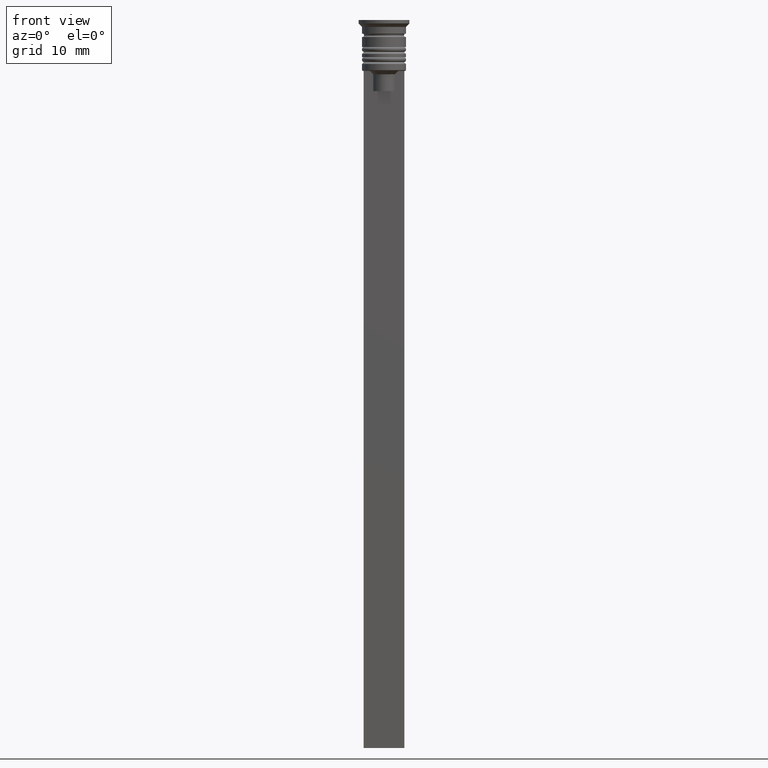
[diagram: clean part render]
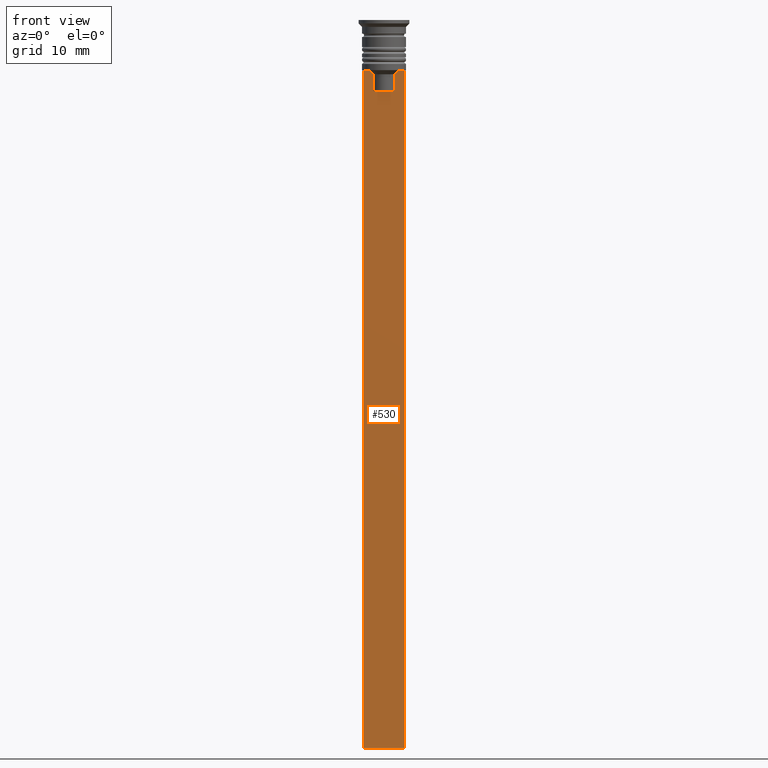
[diagram: same view with one face highlighted and labeled with its STEP entity id]
A machine part, front view. The second image highlights one B-rep face of the part: STEP entity #530.
In plain terms, the highlighted planar face has unit normal (0, -1, -0).
Its self-contained STEP definition (entity closure, byte-faithful):
#28 = CARTESIAN_POINT ( 'NONE',  ( -3.000000000000004441, -0.3500000000000000333, -107.5000000000000000 ) ) ;
#68 = VERTEX_POINT ( 'NONE', #1046 ) ;
#88 = VECTOR ( 'NONE', #1119, 1000.000000000000000 ) ;
#136 = ORIENTED_EDGE ( 'NONE', *, *, #243, .T. ) ;
#149 = EDGE_CURVE ( 'NONE', #1436, #1572, #656, .T. ) ;
#150 = CARTESIAN_POINT ( 'NONE',  ( 2.999999999999995559, -0.3500000000000000333, -1.459304675784417915 ) ) ;
#159 = DIRECTION ( 'NONE',  ( -1.000000000000000000, 0.000000000000000000, 0.000000000000000000 ) ) ;
#172 = CARTESIAN_POINT ( 'NONE',  ( -1.782527878033862478, -0.3500000000000000333, -7.833794036819864637 ) ) ;
#189 = CARTESIAN_POINT ( 'NONE',  ( 2.999999999999995559, -0.3500000000000000333, -1.459304675784417915 ) ) ;
#243 = EDGE_CURVE ( 'NONE', #2129, #1447, #567, .T. ) ;
#251 = PLANE ( 'NONE',  #441 ) ;
#284 = CARTESIAN_POINT ( 'NONE',  ( 1.612451549659713601, -0.3500000000000000333, -8.000000000000000000 ) ) ;
#288 = CARTESIAN_POINT ( 'NONE',  ( 2.999999999999995559, -0.3500000000000000333, -7.500000000000000000 ) ) ;
#299 = CARTESIAN_POINT ( 'NONE',  ( 2.999999999999995559, -0.3500000000000000333, -7.500000000000000000 ) ) ;
#359 = ORIENTED_EDGE ( 'NONE', *, *, #1767, .F. ) ;
#372 = ORIENTED_EDGE ( 'NONE', *, *, #391, .F. ) ;
#391 = EDGE_CURVE ( 'NONE', #2049, #1436, #1623, .T. ) ;
#396 = ORIENTED_EDGE ( 'NONE', *, *, #556, .F. ) ;
#434 = EDGE_CURVE ( 'NONE', #2129, #68, #1127, .T. ) ;
#441 = AXIS2_PLACEMENT_3D ( 'NONE', #150, #1987, #486 ) ;
#485 = VECTOR ( 'NONE', #159, 1000.000000000000000 ) ;
#486 = DIRECTION ( 'NONE',  ( 0.000000000000000000, 0.000000000000000000, -1.000000000000000000 ) ) ;
#499 = CARTESIAN_POINT ( 'NONE',  ( 2.999999999999995559, -0.3500000000000000333, -107.5000000000000000 ) ) ;
#501 = CARTESIAN_POINT ( 'NONE',  ( 2.121320343559647270, -0.3500000000000000333, -7.500000000000000000 ) ) ;
#530 = ADVANCED_FACE ( 'NONE', ( #1755 ), #251, .T. ) ;
#556 = EDGE_CURVE ( 'NONE', #1828, #1447, #1823, .T. ) ;
#565 = CARTESIAN_POINT ( 'NONE',  ( 2.121320343559647270, -0.3500000000000000333, -7.500000000000000000 ) ) ;
#567 = LINE ( 'NONE', #870, #618 ) ;
#588 = VECTOR ( 'NONE', #1514, 1000.000000000000000 ) ;
#589 = VERTEX_POINT ( 'NONE', #662 ) ;
#603 = CARTESIAN_POINT ( 'NONE',  ( 0.000000000000000000, -0.3500000000000000333, -10.49999999999999822 ) ) ;
#618 = VECTOR ( 'NONE', #747, 1000.000000000000000 ) ;
#638 = EDGE_CURVE ( 'NONE', #1640, #1828, #1021, .T. ) ;
#656 = B_SPLINE_CURVE_WITH_KNOTS ( 'NONE', 3,
 ( #1489, #1187, #665, #501 ),
 .UNSPECIFIED., .F., .F.,
 ( 4, 4 ),
 ( 0.008600796474521228696, 0.009317962624906526645 ),
 .UNSPECIFIED. ) ;
#662 = CARTESIAN_POINT ( 'NONE',  ( -1.612451549659713601, -0.3500000000000000333, -8.000000000000000000 ) ) ;
#665 = CARTESIAN_POINT ( 'NONE',  ( 1.952040775369266346, -0.3500000000000000333, -7.667021484535463394 ) ) ;
#679 = EDGE_CURVE ( 'NONE', #68, #589, #1456, .T. ) ;
#698 = CARTESIAN_POINT ( 'NONE',  ( -2.121320343559647270, -0.3500000000000000333, -7.500000000000000000 ) ) ;
#747 = DIRECTION ( 'NONE',  ( 0.000000000000000000, 0.000000000000000000, -1.000000000000000000 ) ) ;
#761 = LINE ( 'NONE', #603, #1953 ) ;
#778 = CARTESIAN_POINT ( 'NONE',  ( 1.612451549659713601, -0.3500000000000000333, 0.000000000000000000 ) ) ;
#799 = DIRECTION ( 'NONE',  ( 1.000000000000000000, 0.000000000000000000, 0.000000000000000000 ) ) ;
#819 = CARTESIAN_POINT ( 'NONE',  ( -1.612451549659713601, -0.3500000000000000333, 0.000000000000000000 ) ) ;
#825 = EDGE_CURVE ( 'NONE', #2062, #2049, #761, .T. ) ;
#870 = CARTESIAN_POINT ( 'NONE',  ( -3.000000000000004441, -0.3500000000000000333, -1.459304675784417915 ) ) ;
#901 = VECTOR ( 'NONE', #1421, 1000.000000000000000 ) ;
#985 = CARTESIAN_POINT ( 'NONE',  ( -3.000000000000004441, -0.3500000000000000333, -7.500000000000000000 ) ) ;
#1004 = LINE ( 'NONE', #819, #1148 ) ;
#1021 = LINE ( 'NONE', #189, #588 ) ;
#1046 = CARTESIAN_POINT ( 'NONE',  ( -2.121320343559647270, -0.3500000000000000333, -7.500000000000000000 ) ) ;
#1119 = DIRECTION ( 'NONE',  ( 1.000000000000000000, 0.000000000000000000, 0.000000000000000000 ) ) ;
#1127 = LINE ( 'NONE', #1443, #88 ) ;
#1137 = DIRECTION ( 'NONE',  ( 0.000000000000000000, 0.000000000000000000, -1.000000000000000000 ) ) ;
#1144 = ORIENTED_EDGE ( 'NONE', *, *, #638, .F. ) ;
#1148 = VECTOR ( 'NONE', #1137, 1000.000000000000000 ) ;
#1163 = ORIENTED_EDGE ( 'NONE', *, *, #679, .F. ) ;
#1187 = CARTESIAN_POINT ( 'NONE',  ( 1.782523989086206795, -0.3500000000000000333, -7.833797837268088315 ) ) ;
#1284 = LINE ( 'NONE', #299, #1326 ) ;
#1326 = VECTOR ( 'NONE', #799, 1000.000000000000000 ) ;
#1332 = CARTESIAN_POINT ( 'NONE',  ( 1.612451549659713601, -0.3500000000000000333, -10.49999999999999822 ) ) ;
#1421 = DIRECTION ( 'NONE',  ( -0.000000000000000000, -0.000000000000000000, 1.000000000000000000 ) ) ;
#1436 = VERTEX_POINT ( 'NONE', #284 ) ;
#1442 = ORIENTED_EDGE ( 'NONE', *, *, #149, .F. ) ;
#1443 = CARTESIAN_POINT ( 'NONE',  ( 2.999999999999995559, -0.3500000000000000333, -7.500000000000000000 ) ) ;
#1447 = VERTEX_POINT ( 'NONE', #28 ) ;
#1456 = B_SPLINE_CURVE_WITH_KNOTS ( 'NONE', 3,
 ( #698, #1693, #172, #1881 ),
 .UNSPECIFIED., .F., .F.,
 ( 4, 4 ),
 ( 0.003684653461239337929, 0.004398058763641257696 ),
 .UNSPECIFIED. ) ;
#1489 = CARTESIAN_POINT ( 'NONE',  ( 1.612451549659713601, -0.3500000000000000333, -8.000000000000000000 ) ) ;
#1514 = DIRECTION ( 'NONE',  ( 0.000000000000000000, 0.000000000000000000, -1.000000000000000000 ) ) ;
#1572 = VERTEX_POINT ( 'NONE', #565 ) ;
#1623 = LINE ( 'NONE', #778, #901 ) ;
#1640 = VERTEX_POINT ( 'NONE', #288 ) ;
#1651 = ORIENTED_EDGE ( 'NONE', *, *, #825, .F. ) ;
#1683 = ORIENTED_EDGE ( 'NONE', *, *, #434, .F. ) ;
#1684 = CARTESIAN_POINT ( 'NONE',  ( 2.999999999999995559, -0.3500000000000000333, -107.5000000000000000 ) ) ;
#1693 = CARTESIAN_POINT ( 'NONE',  ( -1.952043732028444500, -0.3500000000000000333, -7.667018567316270961 ) ) ;
#1755 = FACE_OUTER_BOUND ( 'NONE', #1913, .T. ) ;
#1767 = EDGE_CURVE ( 'NONE', #1572, #1640, #1284, .T. ) ;
#1823 = LINE ( 'NONE', #499, #485 ) ;
#1828 = VERTEX_POINT ( 'NONE', #1684 ) ;
#1844 = CARTESIAN_POINT ( 'NONE',  ( -1.612451549659713601, -0.3500000000000000333, -10.49999999999999822 ) ) ;
#1881 = CARTESIAN_POINT ( 'NONE',  ( -1.612451549659713601, -0.3500000000000000333, -8.000000000000000000 ) ) ;
#1913 = EDGE_LOOP ( 'NONE', ( #1163, #1683, #136, #396, #1144, #359, #1442, #372, #1651, #2081 ) ) ;
#1953 = VECTOR ( 'NONE', #2063, 1000.000000000000000 ) ;
#1987 = DIRECTION ( 'NONE',  ( 0.000000000000000000, -1.000000000000000000, -0.000000000000000000 ) ) ;
#2044 = EDGE_CURVE ( 'NONE', #589, #2062, #1004, .T. ) ;
#2049 = VERTEX_POINT ( 'NONE', #1332 ) ;
#2062 = VERTEX_POINT ( 'NONE', #1844 ) ;
#2063 = DIRECTION ( 'NONE',  ( 1.000000000000000000, 0.000000000000000000, 0.000000000000000000 ) ) ;
#2081 = ORIENTED_EDGE ( 'NONE', *, *, #2044, .F. ) ;
#2129 = VERTEX_POINT ( 'NONE', #985 ) ;